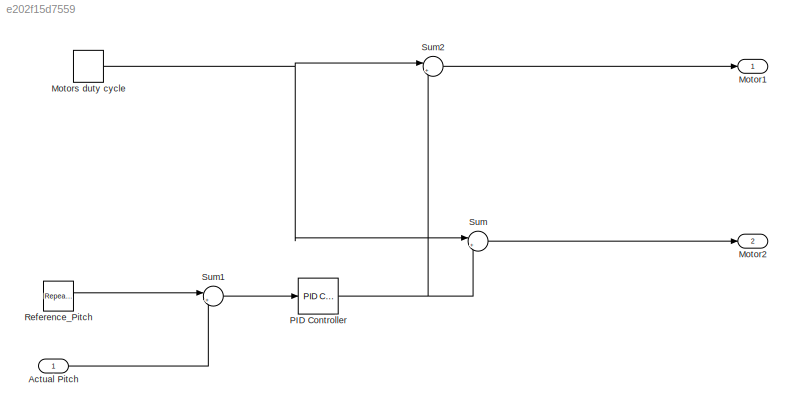
MODEL slx_e202f15d7559
KIND model
CONFIG AbsTol = auto
CONFIG EnableMultiTasking = off
CONFIG FixedStep = auto
CONFIG MaxStep = auto
CONFIG MinStep = auto
CONFIG RelTol = 1e-3
CONFIG SampleTimeConstraint = Unconstrained
CONFIG SolverName = VariableStepAuto
CONFIG StartTime = 0.0
CONFIG StopTime = 10.0
BLOCK [Inport] Actual Pitch
BLOCK [Outport] Motor1
BLOCK [Outport] Motor2
  Port = 2
BLOCK [DiscretePulseGenerator] Motors duty cycle
  Period = 10
  Ports = [0, 1]
  PulseType = Time based
  PulseWidth = 40
BLOCK [Reference] PID Controller  REF=pid_lib/PID Controller
  Ports = [1, 1]
  SourceBlock = pid_lib/PID Controller
  SourceProductBaseCode = SL
  SourceType = PID 1dof
BLOCK [Reference] Reference_Pitch  REF=simulink/Sources/Repeating
Sequence
Interpolated
  Ports = [0, 1]
  SourceBlock = simulink/Sources/Repeating\nSequence\nInterpolated
  SourceProductBaseCode = SL
  SourceType = Repeating Sequence Interpolated
BLOCK [Sum] Sum
  Inputs = |+-
  Ports = [2, 1]
BLOCK [Sum] Sum1
  Inputs = |+-
  Ports = [2, 1]
BLOCK [Sum] Sum2
  Inputs = |++
  Ports = [2, 1]
LINE Actual Pitch:1 -> Sum1:2
NET Motors duty cycle:1 -> Sum2:1, Sum:1
NET PID Controller:1 -> Sum2:2, Sum:2
LINE Reference_Pitch:1 -> Sum1:1
LINE Sum1:1 -> PID Controller:1
LINE Sum2:1 -> Motor1:1
LINE Sum:1 -> Motor2:1
note: NET lines group one-source signal fan-out (src -> all destinations, sorted); 1:1 wires keep LINE
